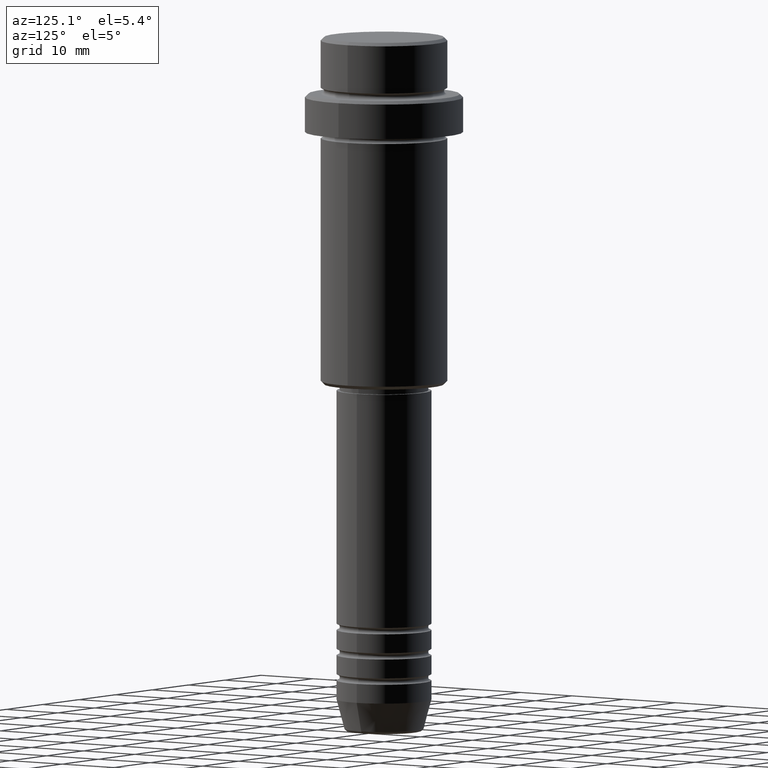
[diagram: clean part render]
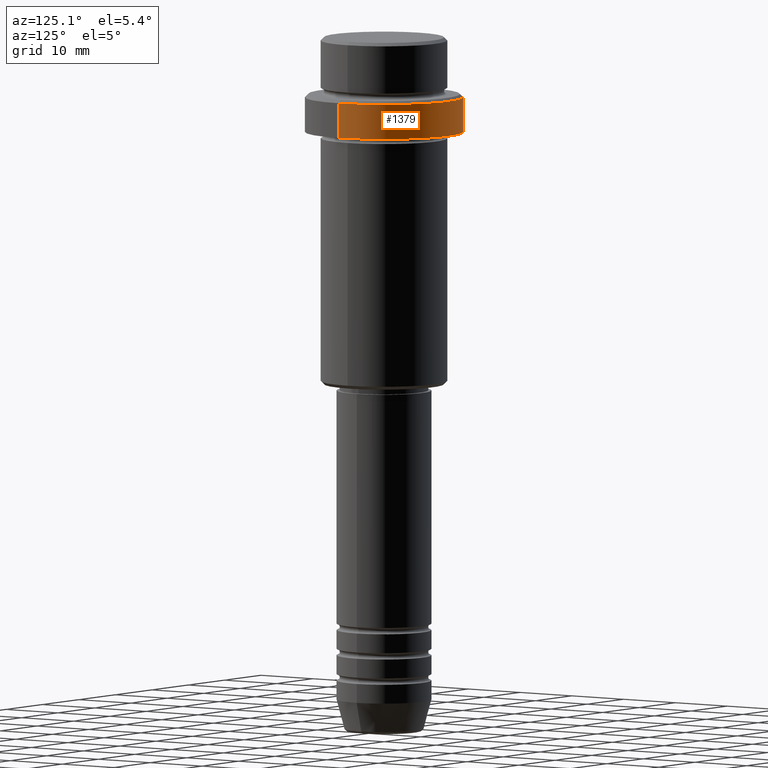
[diagram: same view with one face highlighted and labeled with its STEP entity id]
A machine part, auxiliary view. The second image highlights one B-rep face of the part: STEP entity #1379.
In plain terms, the highlighted cylindrical surface (partial cylindrical patch) has radius 12.5 mm, axis along (-0, -0, 1).
Its self-contained STEP definition (entity closure, byte-faithful):
#5 = CARTESIAN_POINT ( 'NONE',  ( -12.50000000000000000, 1.530808498934191521E-15, 0.000000000000000000 ) ) ;
#15 = VERTEX_POINT ( 'NONE', #302 ) ;
#34 = ORIENTED_EDGE ( 'NONE', *, *, #100, .T. ) ;
#48 = ORIENTED_EDGE ( 'NONE', *, *, #325, .F. ) ;
#67 = DIRECTION ( 'NONE',  ( 1.000000000000000000, 0.000000000000000000, 0.000000000000000000 ) ) ;
#100 = EDGE_CURVE ( 'NONE', #610, #1280, #1087, .T. ) ;
#122 = DIRECTION ( 'NONE',  ( 0.000000000000000000, 0.000000000000000000, -1.000000000000000000 ) ) ;
#131 = EDGE_CURVE ( 'NONE', #1415, #610, #365, .T. ) ;
#219 = EDGE_CURVE ( 'NONE', #15, #1415, #620, .T. ) ;
#302 = CARTESIAN_POINT ( 'NONE',  ( 12.50000000000000000, 0.000000000000000000, -15.00000000000000178 ) ) ;
#325 = EDGE_CURVE ( 'NONE', #15, #1280, #1383, .T. ) ;
#335 = DIRECTION ( 'NONE',  ( 1.000000000000000000, 0.000000000000000000, 0.000000000000000000 ) ) ;
#365 = LINE ( 'NONE', #5, #488 ) ;
#403 = DIRECTION ( 'NONE',  ( -0.000000000000000000, -0.000000000000000000, 1.000000000000000000 ) ) ;
#435 = DIRECTION ( 'NONE',  ( -0.000000000000000000, -0.000000000000000000, 1.000000000000000000 ) ) ;
#447 = DIRECTION ( 'NONE',  ( 1.000000000000000000, 0.000000000000000000, 0.000000000000000000 ) ) ;
#488 = VECTOR ( 'NONE', #764, 1000.000000000000000 ) ;
#521 = CARTESIAN_POINT ( 'NONE',  ( 12.50000000000000000, 0.000000000000000000, -9.499999999999992895 ) ) ;
#610 = VERTEX_POINT ( 'NONE', #993 ) ;
#620 = CIRCLE ( 'NONE', #1354, 12.50000000000000000 ) ;
#627 = DIRECTION ( 'NONE',  ( -0.000000000000000000, -0.000000000000000000, 1.000000000000000000 ) ) ;
#631 = FACE_OUTER_BOUND ( 'NONE', #901, .T. ) ;
#667 = VECTOR ( 'NONE', #403, 1000.000000000000000 ) ;
#764 = DIRECTION ( 'NONE',  ( -0.000000000000000000, -0.000000000000000000, 1.000000000000000000 ) ) ;
#901 = EDGE_LOOP ( 'NONE', ( #1206, #1349, #34, #48 ) ) ;
#948 = CYLINDRICAL_SURFACE ( 'NONE', #1336, 12.50000000000000000 ) ;
#956 = CARTESIAN_POINT ( 'NONE',  ( -12.50000000000000000, 1.530808498934191521E-15, -15.00000000000000178 ) ) ;
#993 = CARTESIAN_POINT ( 'NONE',  ( -12.50000000000000000, 1.530808498934191521E-15, -9.499999999999992895 ) ) ;
#996 = AXIS2_PLACEMENT_3D ( 'NONE', #1091, #122, #447 ) ;
#1033 = CARTESIAN_POINT ( 'NONE',  ( 12.50000000000000000, 0.000000000000000000, 0.000000000000000000 ) ) ;
#1059 = CARTESIAN_POINT ( 'NONE',  ( 0.000000000000000000, 0.000000000000000000, 0.000000000000000000 ) ) ;
#1087 = CIRCLE ( 'NONE', #996, 12.50000000000000000 ) ;
#1091 = CARTESIAN_POINT ( 'NONE',  ( 0.000000000000000000, 0.000000000000000000, -9.499999999999992895 ) ) ;
#1206 = ORIENTED_EDGE ( 'NONE', *, *, #219, .T. ) ;
#1266 = CARTESIAN_POINT ( 'NONE',  ( 0.000000000000000000, 0.000000000000000000, -15.00000000000000178 ) ) ;
#1280 = VERTEX_POINT ( 'NONE', #521 ) ;
#1336 = AXIS2_PLACEMENT_3D ( 'NONE', #1059, #435, #335 ) ;
#1349 = ORIENTED_EDGE ( 'NONE', *, *, #131, .T. ) ;
#1354 = AXIS2_PLACEMENT_3D ( 'NONE', #1266, #627, #67 ) ;
#1379 = ADVANCED_FACE ( 'NONE', ( #631 ), #948, .T. ) ;
#1383 = LINE ( 'NONE', #1033, #667 ) ;
#1415 = VERTEX_POINT ( 'NONE', #956 ) ;